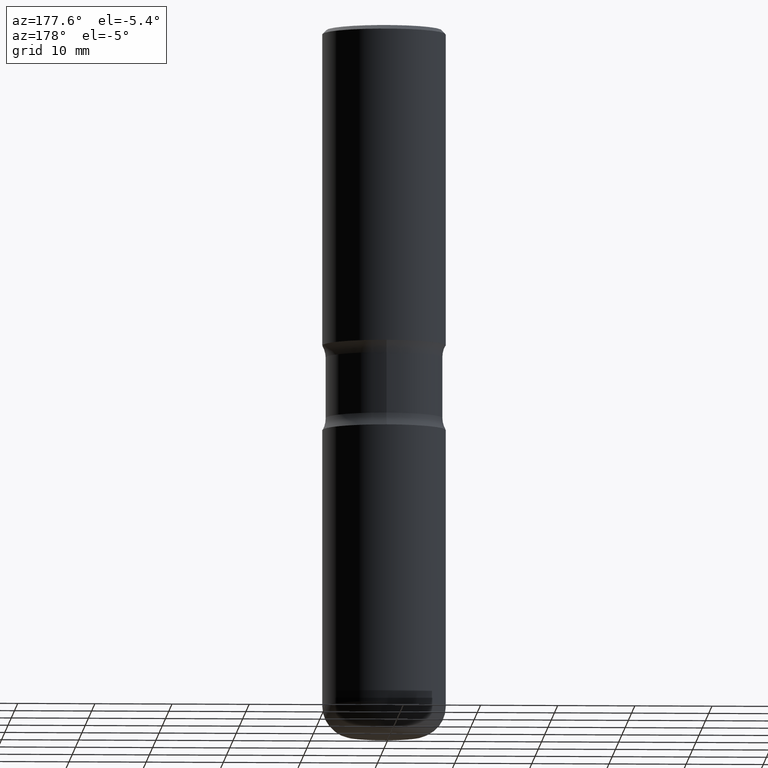
[diagram: clean part render]
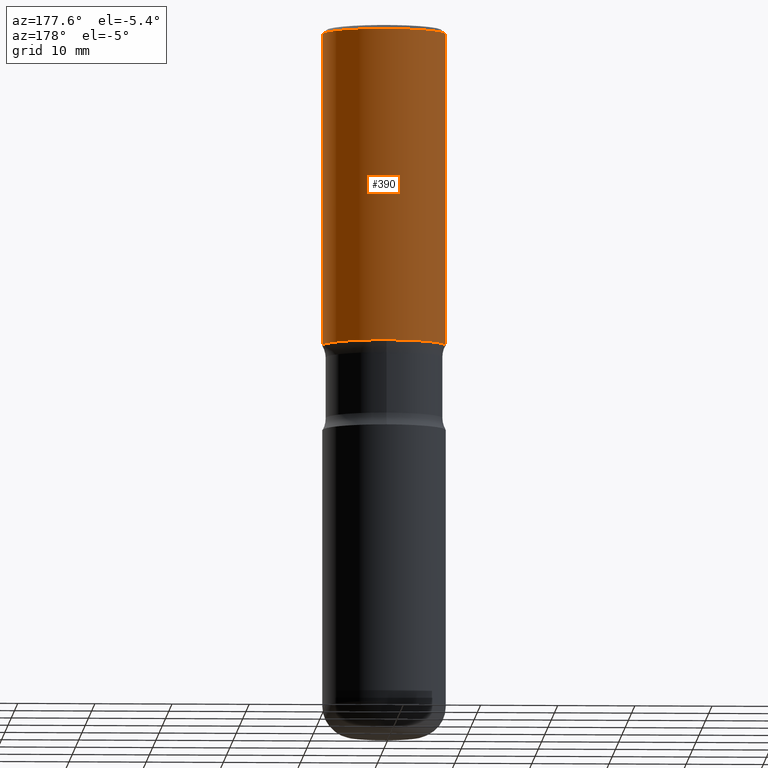
[diagram: same view with one face highlighted and labeled with its STEP entity id]
A machine part, auxiliary view. The second image highlights one B-rep face of the part: STEP entity #390.
In plain terms, the highlighted cylindrical surface (partial cylindrical patch) has radius 7.9997 mm, axis along (-0, 0, 1).
Its self-contained STEP definition (entity closure, byte-faithful):
#16 = FACE_OUTER_BOUND ( 'NONE', #369, .T. ) ;
#17 = VECTOR ( 'NONE', #434, 39.37007874015748143 ) ;
#37 = DIRECTION ( 'NONE',  ( -2.445468806185136597E-29, 3.491481338843145583E-15, 1.000000000000000000 ) ) ;
#70 = LINE ( 'NONE', #145, #366 ) ;
#84 = CARTESIAN_POINT ( 'NONE',  ( 3.947231200063427485E-29, -5.635600029026719491E-15, -1.614099999999999424 ) ) ;
#85 = CIRCLE ( 'NONE', #98, 0.3149500000000001743 ) ;
#88 = CARTESIAN_POINT ( 'NONE',  ( -0.3149500000000003408, -6.148604816253523528E-16, -1.614099999999999424 ) ) ;
#90 = CARTESIAN_POINT ( 'NONE',  ( 0.3149500000000002853, -2.199284095337291843E-15, 1.535751875536931531E-29 ) ) ;
#98 = AXIS2_PLACEMENT_3D ( 'NONE', #386, #214, #299 ) ;
#100 = EDGE_CURVE ( 'NONE', #462, #437, #340, .T. ) ;
#121 = CYLINDRICAL_SURFACE ( 'NONE', #125, 0.3149500000000002853 ) ;
#125 = AXIS2_PLACEMENT_3D ( 'NONE', #417, #37, #553 ) ;
#144 = ORIENTED_EDGE ( 'NONE', *, *, #371, .T. ) ;
#145 = CARTESIAN_POINT ( 'NONE',  ( -0.3149500000000002853, 2.237854346276437562E-15, -1.549218606675783797E-29 ) ) ;
#171 = CARTESIAN_POINT ( 'NONE',  ( 0.3149500000000001743, -2.230543471175008239E-15, -0.02000000000000006981 ) ) ;
#198 = EDGE_CURVE ( 'NONE', #437, #481, #85, .T. ) ;
#214 = DIRECTION ( 'NONE',  ( -2.445468806185136597E-29, 3.491481338843145583E-15, 1.000000000000000000 ) ) ;
#218 = VERTEX_POINT ( 'NONE', #88 ) ;
#244 = DIRECTION ( 'NONE',  ( -2.445468806185136597E-29, 3.491481338843145583E-15, 1.000000000000000000 ) ) ;
#273 = EDGE_CURVE ( 'NONE', #462, #218, #413, .T. ) ;
#286 = ORIENTED_EDGE ( 'NONE', *, *, #100, .F. ) ;
#292 = AXIS2_PLACEMENT_3D ( 'NONE', #84, #244, #424 ) ;
#299 = DIRECTION ( 'NONE',  ( 1.000000000000000000, -6.982962677686265922E-15, 0.000000000000000000 ) ) ;
#306 = DIRECTION ( 'NONE',  ( -2.445468806185136877E-29, 3.491481338843145188E-15, 1.000000000000000000 ) ) ;
#340 = LINE ( 'NONE', #90, #17 ) ;
#366 = VECTOR ( 'NONE', #306, 39.37007874015748143 ) ;
#369 = EDGE_LOOP ( 'NONE', ( #524, #144, #487, #286 ) ) ;
#371 = EDGE_CURVE ( 'NONE', #218, #481, #70, .T. ) ;
#386 = CARTESIAN_POINT ( 'NONE',  ( 4.890937612370289799E-31, -6.982962677686315028E-17, -0.02000000000000006981 ) ) ;
#390 = ADVANCED_FACE ( 'NONE', ( #16 ), #121, .T. ) ;
#413 = CIRCLE ( 'NONE', #292, 0.3149500000000003408 ) ;
#417 = CARTESIAN_POINT ( 'NONE',  ( 0.000000000000000000, 0.000000000000000000, 0.000000000000000000 ) ) ;
#424 = DIRECTION ( 'NONE',  ( 1.000000000000000000, -6.982962677686265922E-15, 0.000000000000000000 ) ) ;
#432 = CARTESIAN_POINT ( 'NONE',  ( 0.3149500000000003408, -7.834884124364010939E-15, -1.614099999999999424 ) ) ;
#434 = DIRECTION ( 'NONE',  ( -2.445468806185136877E-29, 3.491481338843145188E-15, 1.000000000000000000 ) ) ;
#437 = VERTEX_POINT ( 'NONE', #171 ) ;
#462 = VERTEX_POINT ( 'NONE', #432 ) ;
#475 = CARTESIAN_POINT ( 'NONE',  ( -0.3149500000000001743, 2.129454468560427756E-15, -0.02000000000000006981 ) ) ;
#481 = VERTEX_POINT ( 'NONE', #475 ) ;
#487 = ORIENTED_EDGE ( 'NONE', *, *, #198, .F. ) ;
#524 = ORIENTED_EDGE ( 'NONE', *, *, #273, .T. ) ;
#553 = DIRECTION ( 'NONE',  ( 1.000000000000000000, -6.982962677686267499E-15, 4.876176775795936353E-29 ) ) ;